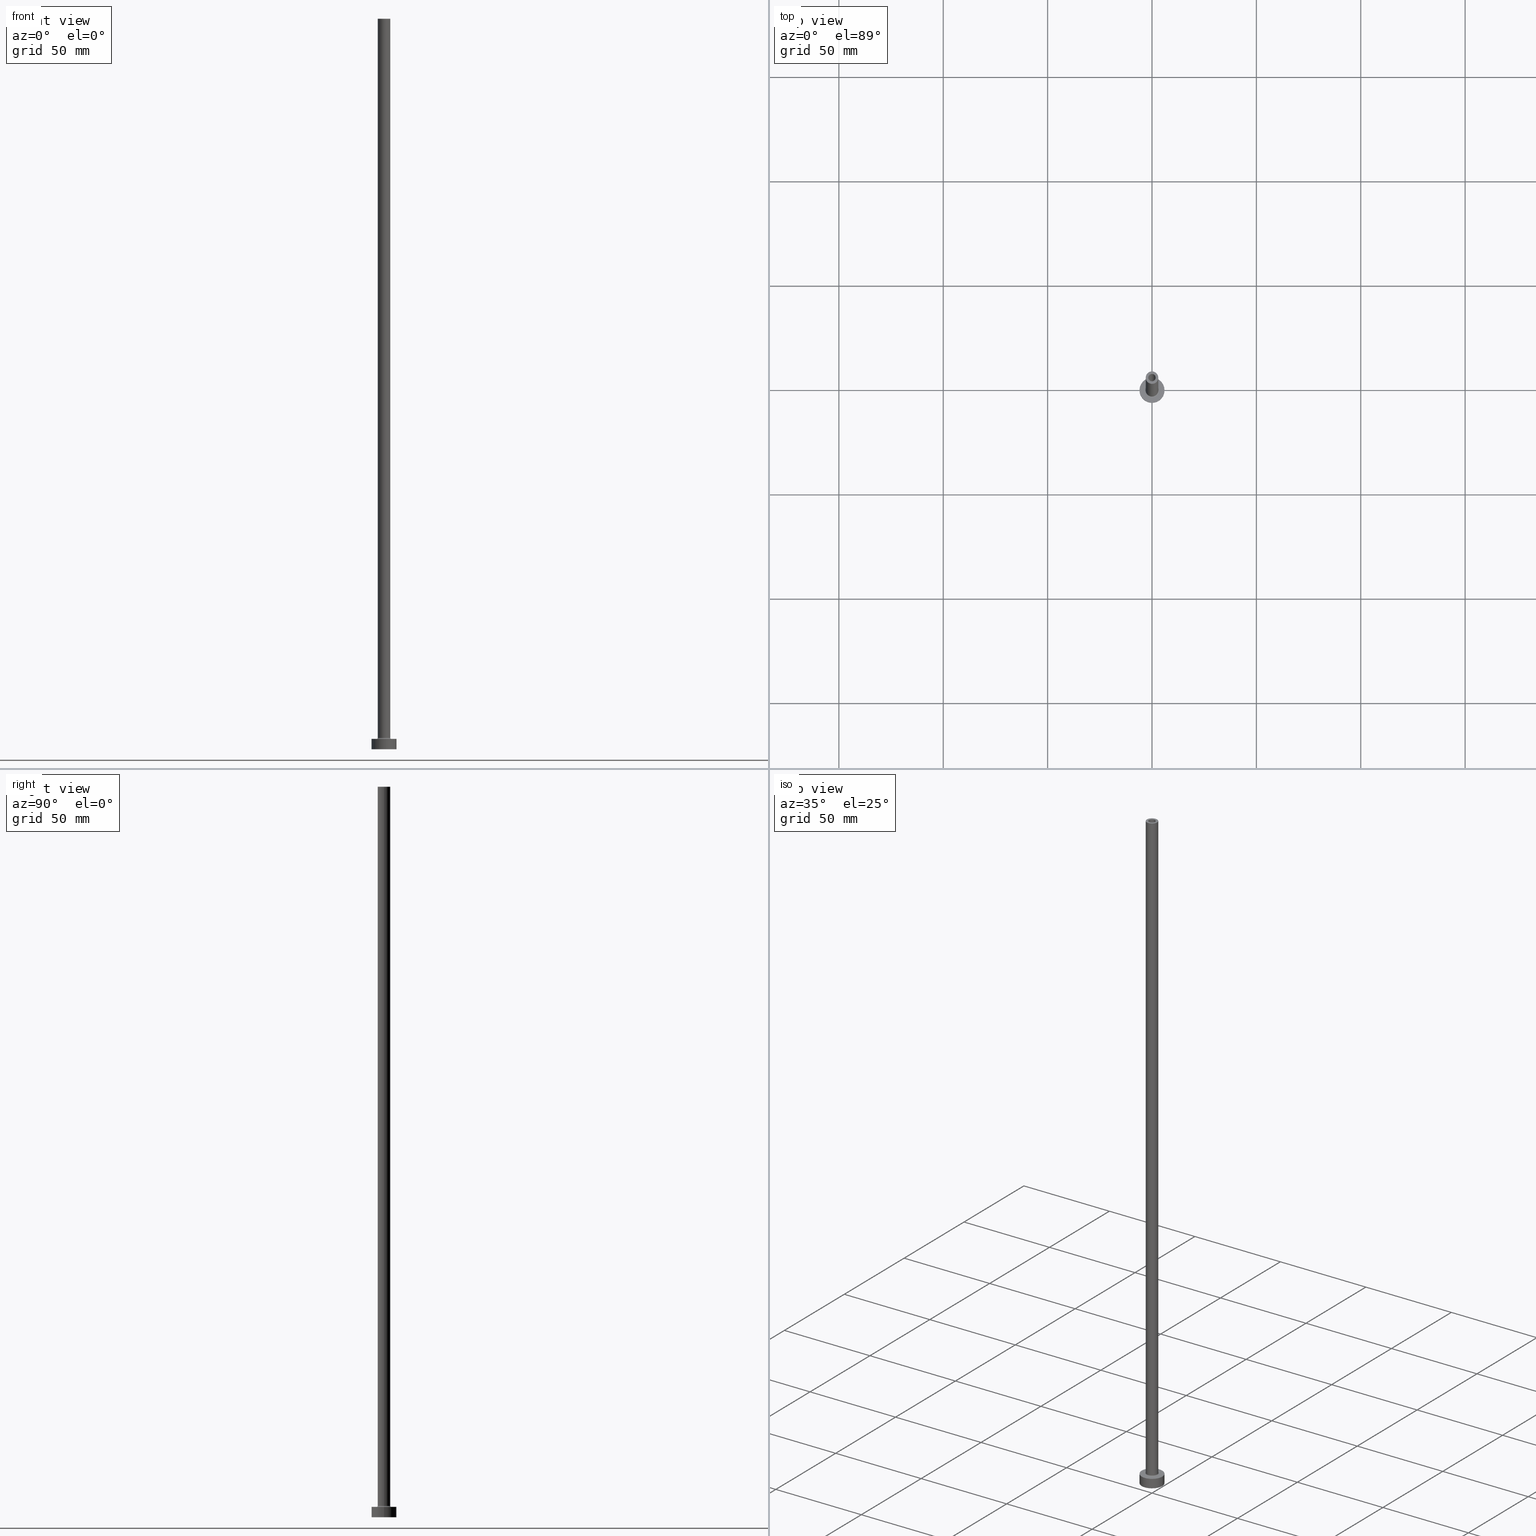
[diagram: canonical four-view strip — front | top / right | iso, engineering-drawing reading convention]
A machine part, canonical four-view strip (front | top / right | iso — engineering-drawing reading convention). The complete STEP part file that produces these views, byte-faithful:
ISO-10303-21;
HEADER;
FILE_DESCRIPTION (( 'STEP AP203' ),
    '1' );
FILE_NAME ('b839.STEP',
    '2023-02-13T17:49:47',
    ( '' ),
    ( '' ),
    'SwSTEP 2.0',
    'SolidWorks 2019',
    '' );
FILE_SCHEMA (( 'CONFIG_CONTROL_DESIGN' ));
ENDSEC;

DATA;
#1 = EDGE_LOOP ( 'NONE', ( #424, #156, #143, #321 ) ) ;
#2 = AXIS2_PLACEMENT_3D ( 'NONE', #272, #420, #384 ) ;
#3 = DIRECTION ( 'NONE',  ( 0.000000000000000000, 0.000000000000000000, 1.000000000000000000 ) ) ;
#4 = CARTESIAN_POINT ( 'NONE',  ( 0.000000000000000000, 0.000000000000000000, 350.0000000000000000 ) ) ;
#5 = CARTESIAN_POINT ( 'NONE',  ( -3.500000000000000444, 4.286263797015737088E-16, 5.000000000000002665 ) ) ;
#6 = ADVANCED_FACE ( 'NONE', ( #135 ), #268, .F. ) ;
#7 = DIRECTION ( 'NONE',  ( 0.000000000000000000, 0.000000000000000000, -1.000000000000000000 ) ) ;
#8 = CC_DESIGN_SECURITY_CLASSIFICATION ( #273, ( #347 ) ) ;
#9 = AXIS2_PLACEMENT_3D ( 'NONE', #360, #436, #252 ) ;
#10 = CIRCLE ( 'NONE', #370, 0.4999999999999995559 ) ;
#11 = ORIENTED_EDGE ( 'NONE', *, *, #39, .T. ) ;
#12 = ADVANCED_FACE ( 'NONE', ( #303 ), #422, .F. ) ;
#13 = DATE_AND_TIME ( #199, #294 ) ;
#14 = DIRECTION ( 'NONE',  ( 0.000000000000000000, 0.000000000000000000, 1.000000000000000000 ) ) ;
#15 = EDGE_CURVE ( 'NONE', #383, #105, #10, .T. ) ;
#16 = ORIENTED_EDGE ( 'NONE', *, *, #378, .F. ) ;
#17 = CARTESIAN_POINT ( 'NONE',  ( -3.500000000000000444, 4.286263797015737088E-16, 5.500000000000005329 ) ) ;
#18 = CARTESIAN_POINT ( 'NONE',  ( 0.000000000000000000, 0.000000000000000000, 5.000000000000000000 ) ) ;
#19 = VERTEX_POINT ( 'NONE', #230 ) ;
#20 = DIRECTION ( 'NONE',  ( 0.000000000000000000, 0.000000000000000000, 1.000000000000000000 ) ) ;
#21 = CIRCLE ( 'NONE', #402, 3.000000000000000444 ) ;
#22 = EDGE_CURVE ( 'NONE', #74, #62, #28, .T. ) ;
#23 = MANIFOLD_SOLID_BREP ( 'Odebrat vysunut�m4', #366 ) ;
#24 = DIRECTION ( 'NONE',  ( -0.000000000000000000, -0.000000000000000000, -1.000000000000000000 ) ) ;
#25 = ORIENTED_EDGE ( 'NONE', *, *, #39, .F. ) ;
#26 = DIRECTION ( 'NONE',  ( 0.000000000000000000, 0.000000000000000000, 1.000000000000000000 ) ) ;
#27 = EDGE_LOOP ( 'NONE', ( #401, #440, #354, #417 ) ) ;
#28 = CIRCLE ( 'NONE', #90, 1.899999999999999911 ) ;
#29 = CALENDAR_DATE ( 2023, 13, 2 ) ;
#30 = SECURITY_CLASSIFICATION_LEVEL ( 'unclassified' ) ;
#31 = DIRECTION ( 'NONE',  ( 1.000000000000000000, 0.000000000000000000, -0.000000000000000000 ) ) ;
#32 = LINE ( 'NONE', #183, #405 ) ;
#33 = PERSON_AND_ORGANIZATION ( #133, #100 ) ;
#34 = CARTESIAN_POINT ( 'NONE',  ( 0.000000000000000000, 0.000000000000000000, 350.0000000000000000 ) ) ;
#35 = DIRECTION ( 'NONE',  ( 1.000000000000000000, 0.000000000000000000, 0.000000000000000000 ) ) ;
#36 = APPROVAL_DATE_TIME ( #214, #216 ) ;
#37 = PERSON_AND_ORGANIZATION ( #133, #100 ) ;
#38 = CARTESIAN_POINT ( 'NONE',  ( 1.750000000000000000, 2.143131898507867804E-16, 305.0000000000000000 ) ) ;
#39 = EDGE_CURVE ( 'NONE', #296, #165, #413, .T. ) ;
#40 = CARTESIAN_POINT ( 'NONE',  ( 0.000000000000000000, 0.000000000000000000, 5.000000000000000000 ) ) ;
#41 = CARTESIAN_POINT ( 'NONE',  ( 0.000000000000000000, 0.000000000000000000, 0.000000000000000000 ) ) ;
#42 = DIRECTION ( 'NONE',  ( -0.000000000000000000, -0.000000000000000000, -1.000000000000000000 ) ) ;
#43 = DIRECTION ( 'NONE',  ( -1.000000000000000000, 0.000000000000000000, 0.000000000000000000 ) ) ;
#44 = DIRECTION ( 'NONE',  ( 1.000000000000000000, 0.000000000000000000, 0.000000000000000000 ) ) ;
#45 = EDGE_LOOP ( 'NONE', ( #282, #433, #99, #147 ) ) ;
#46 = PRODUCT_DEFINITION_SHAPE ( 'NONE', 'NONE',  #136 ) ;
#47 = AXIS2_PLACEMENT_3D ( 'NONE', #287, #434, #334 ) ;
#48 = EDGE_LOOP ( 'NONE', ( #277, #25, #92, #263 ) ) ;
#49 = ADVANCED_FACE ( 'NONE', ( #87 ), #187, .T. ) ;
#50 = PLANE ( 'NONE',  #381 ) ;
#51 = VERTEX_POINT ( 'NONE', #350 ) ;
#52 = DIRECTION ( 'NONE',  ( 0.000000000000000000, 0.000000000000000000, -1.000000000000000000 ) ) ;
#53 = CYLINDRICAL_SURFACE ( 'NONE', #441, 6.000000000000000888 ) ;
#54 = CC_DESIGN_PERSON_AND_ORGANIZATION_ASSIGNMENT ( #391, #430, ( #136 ) ) ;
#55 = DIRECTION ( 'NONE',  ( 0.000000000000000000, 0.000000000000000000, 1.000000000000000000 ) ) ;
#56 = ORIENTED_EDGE ( 'NONE', *, *, #439, .F. ) ;
#57 = DIRECTION ( 'NONE',  ( 1.000000000000000000, 0.000000000000000000, 0.000000000000000000 ) ) ;
#58 = EDGE_CURVE ( 'NONE', #51, #371, #382, .T. ) ;
#59 = FACE_OUTER_BOUND ( 'NONE', #48, .T. ) ;
#60 = AXIS2_PLACEMENT_3D ( 'NONE', #4, #293, #260 ) ;
#61 = PRODUCT ( 'b839', 'b839', '', ( #397 ) ) ;
#62 = VERTEX_POINT ( 'NONE', #138 ) ;
#63 = FACE_OUTER_BOUND ( 'NONE', #453, .T. ) ;
#64 = APPLICATION_CONTEXT ( 'configuration controlled 3d designs of mechanical parts and assemblies' ) ;
#65 = CARTESIAN_POINT ( 'NONE',  ( 0.000000000000000000, 0.000000000000000000, 0.000000000000000000 ) ) ;
#66 = DIRECTION ( 'NONE',  ( 0.000000000000000000, 0.000000000000000000, -1.000000000000000000 ) ) ;
#67 = EDGE_LOOP ( 'NONE', ( #373, #379 ) ) ;
#68 = CYLINDRICAL_SURFACE ( 'NONE', #247, 1.750000000000000000 ) ;
#69 = AXIS2_PLACEMENT_3D ( 'NONE', #113, #3, #119 ) ;
#70 = CARTESIAN_POINT ( 'NONE',  ( -1.899999999999999911, 0.000000000000000000, 310.3740115370177932 ) ) ;
#71 = APPLICATION_PROTOCOL_DEFINITION ( 'international standard', 'config_control_design', 1994, #308 ) ;
#72 = CARTESIAN_POINT ( 'NONE',  ( 3.500000000000000444, 0.000000000000000000, 5.500000000000005329 ) ) ;
#73 = CARTESIAN_POINT ( 'NONE',  ( 3.000000000000000444, 3.673940397442060361E-16, 5.500000000000005329 ) ) ;
#74 = VERTEX_POINT ( 'NONE', #411 ) ;
#75 = CALENDAR_DATE ( 2023, 13, 2 ) ;
#76 = DIRECTION ( 'NONE',  ( -0.000000000000000000, -0.000000000000000000, -1.000000000000000000 ) ) ;
#77 = EDGE_CURVE ( 'NONE', #311, #364, #281, .T. ) ;
#78 = EDGE_LOOP ( 'NONE', ( #442, #297, #315, #301 ) ) ;
#79 = CALENDAR_DATE ( 2023, 13, 2 ) ;
#80 = DIRECTION ( 'NONE',  ( -1.000000000000000000, 0.000000000000000000, 0.000000000000000000 ) ) ;
#81 = LINE ( 'NONE', #368, #201 ) ;
#82 = VERTEX_POINT ( 'NONE', #154 ) ;
#83 = CIRCLE ( 'NONE', #164, 3.500000000000000444 ) ;
#84 = CARTESIAN_POINT ( 'NONE',  ( 1.899999999999999911, 2.326828918379971365E-16, 305.0000000000000000 ) ) ;
#85 = CARTESIAN_POINT ( 'NONE',  ( 3.500000000000000444, 0.000000000000000000, 5.000000000000002665 ) ) ;
#86 = ORIENTED_EDGE ( 'NONE', *, *, #58, .F. ) ;
#87 = FACE_OUTER_BOUND ( 'NONE', #124, .T. ) ;
#88 = EDGE_CURVE ( 'NONE', #383, #364, #306, .T. ) ;
#89 = CIRCLE ( 'NONE', #111, 1.750000000000000000 ) ;
#90 = AXIS2_PLACEMENT_3D ( 'NONE', #299, #309, #57 ) ;
#91 = DIRECTION ( 'NONE',  ( 0.000000000000000000, 0.000000000000000000, 1.000000000000000000 ) ) ;
#92 = ORIENTED_EDGE ( 'NONE', *, *, #307, .T. ) ;
#93 = FACE_OUTER_BOUND ( 'NONE', #444, .T. ) ;
#94 = ORIENTED_EDGE ( 'NONE', *, *, #88, .T. ) ;
#95 = VECTOR ( 'NONE', #66, 1000.000000000000000 ) ;
#96 = EDGE_LOOP ( 'NONE', ( #192, #257 ) ) ;
#97 = DIRECTION ( 'NONE',  ( -0.000000000000000000, -0.000000000000000000, -1.000000000000000000 ) ) ;
#98 = APPROVAL ( #438, 'NEUR�EN�' ) ;
#99 = ORIENTED_EDGE ( 'NONE', *, *, #378, .T. ) ;
#100 = ORGANIZATION ( 'NEUR�EN�', 'NEUR�EN�', '' ) ;
#101 = AXIS2_PLACEMENT_3D ( 'NONE', #191, #97, #43 ) ;
#102 = ORIENTED_EDGE ( 'NONE', *, *, #22, .F. ) ;
#103 = LINE ( 'NONE', #70, #95 ) ;
#104 = AXIS2_PLACEMENT_3D ( 'NONE', #107, #146, #337 ) ;
#105 = VERTEX_POINT ( 'NONE', #5 ) ;
#106 = EDGE_CURVE ( 'NONE', #364, #437, #123, .T. ) ;
#107 = CARTESIAN_POINT ( 'NONE',  ( 0.000000000000000000, 0.000000000000000000, 5.500000000000005329 ) ) ;
#108 = APPROVAL_ROLE ( '' ) ;
#109 = CARTESIAN_POINT ( 'NONE',  ( 3.000000000000000444, 3.673940397442060361E-16, 350.0000000000000000 ) ) ;
#110 = FACE_OUTER_BOUND ( 'NONE', #45, .T. ) ;
#111 = AXIS2_PLACEMENT_3D ( 'NONE', #316, #274, #380 ) ;
#112 = DATE_AND_TIME ( #361, #457 ) ;
#113 = CARTESIAN_POINT ( 'NONE',  ( 0.000000000000000000, 0.000000000000000000, 5.500000000000005329 ) ) ;
#114 = DIRECTION ( 'NONE',  ( 1.000000000000000000, 0.000000000000000000, 0.000000000000000000 ) ) ;
#115 = ADVANCED_FACE ( 'NONE', ( #157, #330 ), #244, .T. ) ;
#116 = DIRECTION ( 'NONE',  ( 0.000000000000000000, 0.000000000000000000, -1.000000000000000000 ) ) ;
#117 = COORDINATED_UNIVERSAL_TIME_OFFSET ( 1, 0, .AHEAD. ) ;
#118 = CARTESIAN_POINT ( 'NONE',  ( 0.000000000000000000, 0.000000000000000000, 5.000000000000000000 ) ) ;
#119 = DIRECTION ( 'NONE',  ( 1.000000000000000000, 0.000000000000000000, 0.000000000000000000 ) ) ;
#120 = DIRECTION ( 'NONE',  ( 1.000000000000000000, 0.000000000000000000, -0.000000000000000000 ) ) ;
#121 = CC_DESIGN_APPROVAL ( #225, ( #136 ) ) ;
#122 = CIRCLE ( 'NONE', #134, 6.000000000000000888 ) ;
#123 = CIRCLE ( 'NONE', #267, 0.5000000000000004441 ) ;
#124 = EDGE_LOOP ( 'NONE', ( #278, #210, #372, #202 ) ) ;
#125 = SHAPE_DEFINITION_REPRESENTATION ( #46, #400 ) ;
#126 = CARTESIAN_POINT ( 'NONE',  ( 6.000000000000000888, 7.347880794884120722E-16, 5.000000000000000000 ) ) ;
#127 = CC_DESIGN_APPROVAL ( #98, ( #273 ) ) ;
#128 = CIRCLE ( 'NONE', #226, 1.750000000000000000 ) ;
#129 = DIRECTION ( 'NONE',  ( -0.000000000000000000, -0.000000000000000000, -1.000000000000000000 ) ) ;
#130 = DESIGN_CONTEXT ( 'detailed design', #308, 'design' ) ;
#131 = DIRECTION ( 'NONE',  ( 1.224646799147353207E-16, 1.000000000000000000, -0.000000000000000000 ) ) ;
#132 = EDGE_LOOP ( 'NONE', ( #346, #286, #271, #94 ) ) ;
#133 = PERSON ( 'NEUR�EN�', 'NEUR�EN�', 'NEUR�EN�', ('NEUR�EN�'), ('NEUR�EN�'), ('NEUR�EN�') ) ;
#134 = AXIS2_PLACEMENT_3D ( 'NONE', #166, #262, #374 ) ;
#135 = FACE_OUTER_BOUND ( 'NONE', #404, .T. ) ;
#136 = PRODUCT_DEFINITION ( 'NEZN�M�', '', #347, #130 ) ;
#137 = VERTEX_POINT ( 'NONE', #389 ) ;
#138 = CARTESIAN_POINT ( 'NONE',  ( 1.899999999999999911, 2.326828918379971365E-16, 0.000000000000000000 ) ) ;
#139 = PLANE ( 'NONE',  #369 ) ;
#140 = VERTEX_POINT ( 'NONE', #84 ) ;
#141 = DIRECTION ( 'NONE',  ( 1.000000000000000000, 0.000000000000000000, 0.000000000000000000 ) ) ;
#142 = EDGE_CURVE ( 'NONE', #105, #437, #83, .T. ) ;
#143 = ORIENTED_EDGE ( 'NONE', *, *, #415, .F. ) ;
#144 = PERSON_AND_ORGANIZATION_ROLE ( 'design_owner' ) ;
#145 = APPROVAL_ROLE ( '' ) ;
#146 = DIRECTION ( 'NONE',  ( 0.000000000000000000, 0.000000000000000000, 1.000000000000000000 ) ) ;
#147 = ORIENTED_EDGE ( 'NONE', *, *, #22, .T. ) ;
#148 = APPROVAL_ROLE ( '' ) ;
#149 = EDGE_CURVE ( 'NONE', #140, #62, #435, .T. ) ;
#150 = DIRECTION ( 'NONE',  ( 1.000000000000000000, 0.000000000000000000, 0.000000000000000000 ) ) ;
#151 = AXIS2_PLACEMENT_3D ( 'NONE', #155, #343, #302 ) ;
#152 = ORIENTED_EDGE ( 'NONE', *, *, #203, .F. ) ;
#153 = DIRECTION ( 'NONE',  ( 0.000000000000000000, 0.000000000000000000, 1.000000000000000000 ) ) ;
#154 = CARTESIAN_POINT ( 'NONE',  ( -3.000000000000000444, 0.000000000000000000, 350.0000000000000000 ) ) ;
#155 = CARTESIAN_POINT ( 'NONE',  ( 0.000000000000000000, 0.000000000000000000, 350.0000000000000000 ) ) ;
#156 = ORIENTED_EDGE ( 'NONE', *, *, #385, .T. ) ;
#157 = FACE_BOUND ( 'NONE', #217, .T. ) ;
#158 =( LENGTH_UNIT ( ) NAMED_UNIT ( * ) SI_UNIT ( .MILLI., .METRE. ) );
#159 = AXIS2_PLACEMENT_3D ( 'NONE', #386, #178, #452 ) ;
#160 = DIRECTION ( 'NONE',  ( -0.000000000000000000, -0.000000000000000000, -1.000000000000000000 ) ) ;
#161 = APPROVAL_DATE_TIME ( #13, #98 ) ;
#162 = EDGE_LOOP ( 'NONE', ( #339, #168, #56, #243 ) ) ;
#163 = ADVANCED_FACE ( 'NONE', ( #365 ), #189, .F. ) ;
#164 = AXIS2_PLACEMENT_3D ( 'NONE', #40, #356, #150 ) ;
#165 = VERTEX_POINT ( 'NONE', #181 ) ;
#166 = CARTESIAN_POINT ( 'NONE',  ( 0.000000000000000000, 0.000000000000000000, 0.000000000000000000 ) ) ;
#167 = DIRECTION ( 'NONE',  ( 1.000000000000000000, 0.000000000000000000, -0.000000000000000000 ) ) ;
#168 = ORIENTED_EDGE ( 'NONE', *, *, #15, .T. ) ;
#169 = EDGE_CURVE ( 'NONE', #449, #19, #89, .T. ) ;
#170 = CIRCLE ( 'NONE', #431, 1.899999999999999911 ) ;
#171 = FACE_BOUND ( 'NONE', #259, .T. ) ;
#172 = ORIENTED_EDGE ( 'NONE', *, *, #15, .F. ) ;
#173 = FACE_BOUND ( 'NONE', #96, .T. ) ;
#174 = EDGE_CURVE ( 'NONE', #186, #140, #264, .T. ) ;
#175 = DIRECTION ( 'NONE',  ( 0.000000000000000000, 0.000000000000000000, 1.000000000000000000 ) ) ;
#176 = CARTESIAN_POINT ( 'NONE',  ( 0.000000000000000000, 0.000000000000000000, 5.000000000000000000 ) ) ;
#177 = LOCAL_TIME ( 18, 49, 47.00000000000000000, #251 ) ;
#178 = DIRECTION ( 'NONE',  ( 0.000000000000000000, 0.000000000000000000, 1.000000000000000000 ) ) ;
#179 = AXIS2_PLACEMENT_3D ( 'NONE', #399, #129, #80 ) ;
#180 = APPROVAL_DATE_TIME ( #211, #225 ) ;
#181 = CARTESIAN_POINT ( 'NONE',  ( 6.000000000000000888, 7.347880794884120722E-16, 5.000000000000000000 ) ) ;
#182 = DIRECTION ( 'NONE',  ( 0.000000000000000000, 0.000000000000000000, -1.000000000000000000 ) ) ;
#183 = CARTESIAN_POINT ( 'NONE',  ( -3.000000000000000444, 0.000000000000000000, 350.0000000000000000 ) ) ;
#184 = APPROVAL_STATUS ( 'not_yet_approved' ) ;
#185 = FACE_OUTER_BOUND ( 'NONE', #132, .T. ) ;
#186 = VERTEX_POINT ( 'NONE', #448 ) ;
#187 = CYLINDRICAL_SURFACE ( 'NONE', #47, 6.000000000000000888 ) ;
#188 = CARTESIAN_POINT ( 'NONE',  ( -6.000000000000000888, 0.000000000000000000, 5.000000000000000000 ) ) ;
#189 = TOROIDAL_SURFACE ( 'NONE', #69, 3.500000000000000444, 0.5000000000000000000 ) ;
#190 =( NAMED_UNIT ( * ) PLANE_ANGLE_UNIT ( ) SI_UNIT ( $, .RADIAN. ) );
#191 = CARTESIAN_POINT ( 'NONE',  ( 0.000000000000000000, 0.000000000000000000, 350.0000000000000000 ) ) ;
#192 = ORIENTED_EDGE ( 'NONE', *, *, #439, .T. ) ;
#193 = LINE ( 'NONE', #188, #295 ) ;
#194 = EDGE_CURVE ( 'NONE', #137, #255, #122, .T. ) ;
#195 = APPROVAL_PERSON_ORGANIZATION ( #291, #98, #145 ) ;
#196 = VECTOR ( 'NONE', #24, 1000.000000000000000 ) ;
#197 = AXIS2_PLACEMENT_3D ( 'NONE', #205, #20, #141 ) ;
#198 = ADVANCED_FACE ( 'NONE', ( #59 ), #53, .T. ) ;
#199 = CALENDAR_DATE ( 2023, 13, 2 ) ;
#200 = CC_DESIGN_PERSON_AND_ORGANIZATION_ASSIGNMENT ( #37, #325, ( #347 ) ) ;
#201 = VECTOR ( 'NONE', #7, 1000.000000000000000 ) ;
#202 = ORIENTED_EDGE ( 'NONE', *, *, #307, .F. ) ;
#203 = EDGE_CURVE ( 'NONE', #371, #51, #128, .T. ) ;
#204 = ORIENTED_EDGE ( 'NONE', *, *, #174, .F. ) ;
#205 = CARTESIAN_POINT ( 'NONE',  ( 0.000000000000000000, 0.000000000000000000, 5.000000000000000000 ) ) ;
#206 = LOCAL_TIME ( 18, 49, 47.00000000000000000, #117 ) ;
#207 = AXIS2_PLACEMENT_3D ( 'NONE', #323, #26, #454 ) ;
#208 = PLANE ( 'NONE',  #258 ) ;
#209 = CARTESIAN_POINT ( 'NONE',  ( 0.000000000000000000, 0.000000000000000000, 350.0000000000000000 ) ) ;
#210 = ORIENTED_EDGE ( 'NONE', *, *, #212, .T. ) ;
#211 = DATE_AND_TIME ( #29, #329 ) ;
#212 = EDGE_CURVE ( 'NONE', #165, #137, #300, .T. ) ;
#213 = CARTESIAN_POINT ( 'NONE',  ( -3.000000000000000444, 0.000000000000000000, 5.500000000000005329 ) ) ;
#214 = DATE_AND_TIME ( #75, #177 ) ;
#215 = DIRECTION ( 'NONE',  ( -0.000000000000000000, -0.000000000000000000, -1.000000000000000000 ) ) ;
#216 = APPROVAL ( #184, 'NEUR�EN�' ) ;
#217 = EDGE_LOOP ( 'NONE', ( #152, #86 ) ) ;
#218 = DIRECTION ( 'NONE',  ( 0.000000000000000000, 0.000000000000000000, -1.000000000000000000 ) ) ;
#219 = CARTESIAN_POINT ( 'NONE',  ( -6.000000000000000888, 0.000000000000000000, 0.000000000000000000 ) ) ;
#220 = CIRCLE ( 'NONE', #60, 3.000000000000000444 ) ;
#221 = ORIENTED_EDGE ( 'NONE', *, *, #290, .F. ) ;
#222 = ADVANCED_FACE ( 'NONE', ( #171, #375 ), #139, .F. ) ;
#223 = CYLINDRICAL_SURFACE ( 'NONE', #151, 1.750000000000000000 ) ;
#224 = ORIENTED_EDGE ( 'NONE', *, *, #290, .T. ) ;
#225 = APPROVAL ( #279, 'NEUR�EN�' ) ;
#226 = AXIS2_PLACEMENT_3D ( 'NONE', #414, #153, #318 ) ;
#227 = CC_DESIGN_DATE_AND_TIME_ASSIGNMENT ( #336, #458, ( #273 ) ) ;
#228 = ORIENTED_EDGE ( 'NONE', *, *, #194, .F. ) ;
#229 = UNCERTAINTY_MEASURE_WITH_UNIT (LENGTH_MEASURE( 1.000000000000000082E-05 ), #158, 'distance_accuracy_value', 'NONE');
#230 = CARTESIAN_POINT ( 'NONE',  ( -1.750000000000000000, 0.000000000000000000, 305.0000000000000000 ) ) ;
#231 = DIRECTION ( 'NONE',  ( 1.000000000000000000, 0.000000000000000000, 0.000000000000000000 ) ) ;
#232 = CC_DESIGN_APPROVAL ( #216, ( #347 ) ) ;
#233 = AXIS2_PLACEMENT_3D ( 'NONE', #237, #408, #231 ) ;
#234 = CARTESIAN_POINT ( 'NONE',  ( 0.000000000000000000, 0.000000000000000000, 305.0000000000000000 ) ) ;
#235 = ADVANCED_FACE ( 'NONE', ( #455, #93 ), #50, .F. ) ;
#236 = EDGE_LOOP ( 'NONE', ( #418, #228 ) ) ;
#237 = CARTESIAN_POINT ( 'NONE',  ( 0.000000000000000000, 0.000000000000000000, 5.500000000000005329 ) ) ;
#238 = CC_DESIGN_PERSON_AND_ORGANIZATION_ASSIGNMENT ( #398, #322, ( #273 ) ) ;
#239 = CARTESIAN_POINT ( 'NONE',  ( 0.000000000000000000, 0.000000000000000000, 305.0000000000000000 ) ) ;
#240 = ORIENTED_EDGE ( 'NONE', *, *, #328, .F. ) ;
#241 = ADVANCED_FACE ( 'NONE', ( #390 ), #68, .F. ) ;
#242 = CIRCLE ( 'NONE', #345, 3.500000000000000444 ) ;
#243 = ORIENTED_EDGE ( 'NONE', *, *, #106, .F. ) ;
#244 = PLANE ( 'NONE',  #340 ) ;
#245 = ORIENTED_EDGE ( 'NONE', *, *, #106, .T. ) ;
#246 = COORDINATED_UNIVERSAL_TIME_OFFSET ( 1, 0, .AHEAD. ) ;
#247 = AXIS2_PLACEMENT_3D ( 'NONE', #209, #182, #459 ) ;
#248 = EDGE_CURVE ( 'NONE', #82, #311, #21, .T. ) ;
#249 = DIRECTION ( 'NONE',  ( 0.000000000000000000, 0.000000000000000000, 1.000000000000000000 ) ) ;
#250 = LINE ( 'NONE', #285, #283 ) ;
#251 = COORDINATED_UNIVERSAL_TIME_OFFSET ( 1, 0, .AHEAD. ) ;
#252 = DIRECTION ( 'NONE',  ( -1.000000000000000000, 0.000000000000000000, 0.000000000000000000 ) ) ;
#253 = ADVANCED_FACE ( 'NONE', ( #110 ), #394, .F. ) ;
#254 = CARTESIAN_POINT ( 'NONE',  ( -6.000000000000000888, 0.000000000000000000, 5.000000000000000000 ) ) ;
#255 = VERTEX_POINT ( 'NONE', #219 ) ;
#256 = PERSON_AND_ORGANIZATION_ROLE ( 'creator' ) ;
#257 = ORIENTED_EDGE ( 'NONE', *, *, #142, .T. ) ;
#258 = AXIS2_PLACEMENT_3D ( 'NONE', #176, #14, #120 ) ;
#259 = EDGE_LOOP ( 'NONE', ( #102, #221 ) ) ;
#260 = DIRECTION ( 'NONE',  ( 1.000000000000000000, 0.000000000000000000, 0.000000000000000000 ) ) ;
#261 = ORIENTED_EDGE ( 'NONE', *, *, #341, .T. ) ;
#262 = DIRECTION ( 'NONE',  ( 0.000000000000000000, 0.000000000000000000, 1.000000000000000000 ) ) ;
#263 = ORIENTED_EDGE ( 'NONE', *, *, #280, .T. ) ;
#264 = CIRCLE ( 'NONE', #331, 1.899999999999999911 ) ;
#265 = CC_DESIGN_PERSON_AND_ORGANIZATION_ASSIGNMENT ( #425, #256, ( #347 ) ) ;
#266 = DIRECTION ( 'NONE',  ( -1.000000000000000000, 0.000000000000000000, 0.000000000000000000 ) ) ;
#267 = AXIS2_PLACEMENT_3D ( 'NONE', #72, #359, #393 ) ;
#268 = CYLINDRICAL_SURFACE ( 'NONE', #403, 1.899999999999999911 ) ;
#269 = ORIENTED_EDGE ( 'NONE', *, *, #142, .F. ) ;
#270 = PRODUCT_RELATED_PRODUCT_CATEGORY ( 'detail', '', ( #61 ) ) ;
#271 = ORIENTED_EDGE ( 'NONE', *, *, #395, .T. ) ;
#272 = CARTESIAN_POINT ( 'NONE',  ( 0.000000000000000000, 0.000000000000000000, 305.0000000000000000 ) ) ;
#273 = SECURITY_CLASSIFICATION ( '', '', #30 ) ;
#274 = DIRECTION ( 'NONE',  ( 0.000000000000000000, 0.000000000000000000, 1.000000000000000000 ) ) ;
#275 = AXIS2_PLACEMENT_3D ( 'NONE', #447, #249, #114 ) ;
#276 = DIRECTION ( 'NONE',  ( 1.000000000000000000, 0.000000000000000000, -0.000000000000000000 ) ) ;
#277 = ORIENTED_EDGE ( 'NONE', *, *, #212, .F. ) ;
#278 = ORIENTED_EDGE ( 'NONE', *, *, #341, .F. ) ;
#279 = APPROVAL_STATUS ( 'not_yet_approved' ) ;
#280 = EDGE_CURVE ( 'NONE', #255, #137, #305, .T. ) ;
#281 = LINE ( 'NONE', #109, #319 ) ;
#282 = ORIENTED_EDGE ( 'NONE', *, *, #149, .F. ) ;
#283 = VECTOR ( 'NONE', #116, 1000.000000000000000 ) ;
#284 = FACE_OUTER_BOUND ( 'NONE', #1, .T. ) ;
#285 = CARTESIAN_POINT ( 'NONE',  ( 1.750000000000000000, 2.143131898507867804E-16, 350.0000000000000000 ) ) ;
#286 = ORIENTED_EDGE ( 'NONE', *, *, #248, .F. ) ;
#287 = CARTESIAN_POINT ( 'NONE',  ( 0.000000000000000000, 0.000000000000000000, 5.000000000000000000 ) ) ;
#288 = CYLINDRICAL_SURFACE ( 'NONE', #179, 3.000000000000000444 ) ;
#289 = DIRECTION ( 'NONE',  ( 1.000000000000000000, 0.000000000000000000, 0.000000000000000000 ) ) ;
#290 = EDGE_CURVE ( 'NONE', #62, #74, #446, .T. ) ;
#291 = PERSON_AND_ORGANIZATION ( #133, #100 ) ;
#292 = DIRECTION ( 'NONE',  ( 0.000000000000000000, 0.000000000000000000, 1.000000000000000000 ) ) ;
#293 = DIRECTION ( 'NONE',  ( 0.000000000000000000, 0.000000000000000000, 1.000000000000000000 ) ) ;
#294 = LOCAL_TIME ( 18, 49, 47.00000000000000000, #358 ) ;
#295 = VECTOR ( 'NONE', #215, 1000.000000000000000 ) ;
#296 = VERTEX_POINT ( 'NONE', #254 ) ;
#297 = ORIENTED_EDGE ( 'NONE', *, *, #77, .T. ) ;
#298 = CC_DESIGN_PERSON_AND_ORGANIZATION_ASSIGNMENT ( #324, #144, ( #61 ) ) ;
#299 = CARTESIAN_POINT ( 'NONE',  ( 0.000000000000000000, 0.000000000000000000, 0.000000000000000000 ) ) ;
#300 = LINE ( 'NONE', #126, #196 ) ;
#301 = ORIENTED_EDGE ( 'NONE', *, *, #395, .F. ) ;
#302 = DIRECTION ( 'NONE',  ( -1.000000000000000000, 0.000000000000000000, 0.000000000000000000 ) ) ;
#303 = FACE_OUTER_BOUND ( 'NONE', #162, .T. ) ;
#304 = APPROVAL_PERSON_ORGANIZATION ( #33, #216, #148 ) ;
#305 = CIRCLE ( 'NONE', #421, 6.000000000000000888 ) ;
#306 = CIRCLE ( 'NONE', #104, 3.000000000000000444 ) ;
#307 = EDGE_CURVE ( 'NONE', #296, #255, #193, .T. ) ;
#308 = APPLICATION_CONTEXT ( 'configuration controlled 3d designs of mechanical parts and assemblies' ) ;
#309 = DIRECTION ( 'NONE',  ( -0.000000000000000000, -0.000000000000000000, -1.000000000000000000 ) ) ;
#310 = DIRECTION ( 'NONE',  ( -0.000000000000000000, -0.000000000000000000, -1.000000000000000000 ) ) ;
#311 = VERTEX_POINT ( 'NONE', #432 ) ;
#312 = VECTOR ( 'NONE', #218, 1000.000000000000000 ) ;
#313 = EDGE_CURVE ( 'NONE', #311, #82, #220, .T. ) ;
#314 = DIRECTION ( 'NONE',  ( 1.000000000000000000, 0.000000000000000000, 0.000000000000000000 ) ) ;
#315 = ORIENTED_EDGE ( 'NONE', *, *, #406, .T. ) ;
#316 = CARTESIAN_POINT ( 'NONE',  ( 0.000000000000000000, 0.000000000000000000, 305.0000000000000000 ) ) ;
#317 = AXIS2_PLACEMENT_3D ( 'NONE', #342, #91, #409 ) ;
#318 = DIRECTION ( 'NONE',  ( 1.000000000000000000, 0.000000000000000000, 0.000000000000000000 ) ) ;
#319 = VECTOR ( 'NONE', #42, 1000.000000000000000 ) ;
#320 = ADVANCED_FACE ( 'NONE', ( #284 ), #223, .F. ) ;
#321 = ORIENTED_EDGE ( 'NONE', *, *, #461, .F. ) ;
#322 = PERSON_AND_ORGANIZATION_ROLE ( 'classification_officer' ) ;
#323 = CARTESIAN_POINT ( 'NONE',  ( 0.000000000000000000, 0.000000000000000000, 5.500000000000005329 ) ) ;
#324 = PERSON_AND_ORGANIZATION ( #133, #100 ) ;
#325 = PERSON_AND_ORGANIZATION_ROLE ( 'design_supplier' ) ;
#326 = FACE_OUTER_BOUND ( 'NONE', #78, .T. ) ;
#327 = ORIENTED_EDGE ( 'NONE', *, *, #415, .T. ) ;
#328 = EDGE_CURVE ( 'NONE', #140, #186, #170, .T. ) ;
#329 = LOCAL_TIME ( 18, 49, 47.00000000000000000, #246 ) ;
#330 = FACE_OUTER_BOUND ( 'NONE', #67, .T. ) ;
#331 = AXIS2_PLACEMENT_3D ( 'NONE', #234, #410, #314 ) ;
#332 = DIRECTION ( 'NONE',  ( 1.000000000000000000, 0.000000000000000000, 0.000000000000000000 ) ) ;
#333 = DIRECTION ( 'NONE',  ( 0.000000000000000000, 0.000000000000000000, 1.000000000000000000 ) ) ;
#334 = DIRECTION ( 'NONE',  ( -1.000000000000000000, 0.000000000000000000, 0.000000000000000000 ) ) ;
#335 = ORIENTED_EDGE ( 'NONE', *, *, #169, .T. ) ;
#336 = DATE_AND_TIME ( #79, #206 ) ;
#337 = DIRECTION ( 'NONE',  ( 1.000000000000000000, 0.000000000000000000, 0.000000000000000000 ) ) ;
#338 = DIRECTION ( 'NONE',  ( 0.000000000000000000, 0.000000000000000000, 1.000000000000000000 ) ) ;
#339 = ORIENTED_EDGE ( 'NONE', *, *, #88, .F. ) ;
#340 = AXIS2_PLACEMENT_3D ( 'NONE', #34, #292, #31 ) ;
#341 = EDGE_CURVE ( 'NONE', #165, #296, #392, .T. ) ;
#342 = CARTESIAN_POINT ( 'NONE',  ( 0.000000000000000000, 0.000000000000000000, 0.000000000000000000 ) ) ;
#343 = DIRECTION ( 'NONE',  ( 0.000000000000000000, 0.000000000000000000, -1.000000000000000000 ) ) ;
#344 = ADVANCED_FACE ( 'NONE', ( #185 ), #288, .T. ) ;
#345 = AXIS2_PLACEMENT_3D ( 'NONE', #118, #160, #44 ) ;
#346 = ORIENTED_EDGE ( 'NONE', *, *, #77, .F. ) ;
#347 = PRODUCT_DEFINITION_FORMATION_WITH_SPECIFIED_SOURCE ( 'LIBOVOLN�', '', #61, .NOT_KNOWN. ) ;
#348 = AXIS2_PLACEMENT_3D ( 'NONE', #65, #76, #332 ) ;
#349 = ADVANCED_FACE ( 'NONE', ( #326 ), #363, .T. ) ;
#350 = CARTESIAN_POINT ( 'NONE',  ( 1.750000000000000000, 2.143131898507867804E-16, 350.0000000000000000 ) ) ;
#351 = CARTESIAN_POINT ( 'NONE',  ( 0.000000000000000000, 0.000000000000000000, 0.000000000000000000 ) ) ;
#352 = DIRECTION ( 'NONE',  ( -0.000000000000000000, -0.000000000000000000, -1.000000000000000000 ) ) ;
#353 = APPROVAL_PERSON_ORGANIZATION ( #427, #225, #108 ) ;
#354 = ORIENTED_EDGE ( 'NONE', *, *, #461, .T. ) ;
#355 = CIRCLE ( 'NONE', #207, 3.000000000000000444 ) ;
#356 = DIRECTION ( 'NONE',  ( -0.000000000000000000, -0.000000000000000000, -1.000000000000000000 ) ) ;
#357 = DATE_TIME_ROLE ( 'creation_date' ) ;
#358 = COORDINATED_UNIVERSAL_TIME_OFFSET ( 1, 0, .AHEAD. ) ;
#359 = DIRECTION ( 'NONE',  ( 0.000000000000000000, -1.000000000000000000, 0.000000000000000000 ) ) ;
#360 = CARTESIAN_POINT ( 'NONE',  ( 0.000000000000000000, 0.000000000000000000, 310.3740115370177932 ) ) ;
#361 = CALENDAR_DATE ( 2023, 13, 2 ) ;
#362 = CARTESIAN_POINT ( 'NONE',  ( 1.899999999999999911, 2.326828918379971365E-16, 310.3740115370177932 ) ) ;
#363 = CYLINDRICAL_SURFACE ( 'NONE', #101, 3.000000000000000444 ) ;
#364 = VERTEX_POINT ( 'NONE', #73 ) ;
#365 = FACE_OUTER_BOUND ( 'NONE', #426, .T. ) ;
#366 = CLOSED_SHELL ( 'NONE', ( #320, #6, #12, #349, #49, #198, #419, #222, #344, #115, #163, #253, #235, #241 ) ) ;
#367 = CARTESIAN_POINT ( 'NONE',  ( 0.000000000000000000, 0.000000000000000000, 305.0000000000000000 ) ) ;
#368 = CARTESIAN_POINT ( 'NONE',  ( -1.750000000000000000, 0.000000000000000000, 350.0000000000000000 ) ) ;
#369 = AXIS2_PLACEMENT_3D ( 'NONE', #351, #175, #276 ) ;
#370 = AXIS2_PLACEMENT_3D ( 'NONE', #17, #131, #377 ) ;
#371 = VERTEX_POINT ( 'NONE', #388 ) ;
#372 = ORIENTED_EDGE ( 'NONE', *, *, #194, .T. ) ;
#373 = ORIENTED_EDGE ( 'NONE', *, *, #248, .T. ) ;
#374 = DIRECTION ( 'NONE',  ( 1.000000000000000000, 0.000000000000000000, 0.000000000000000000 ) ) ;
#375 = FACE_OUTER_BOUND ( 'NONE', #236, .T. ) ;
#376 = ORIENTED_EDGE ( 'NONE', *, *, #174, .T. ) ;
#377 = DIRECTION ( 'NONE',  ( -1.000000000000000000, 1.224646799147354440E-16, 0.000000000000000000 ) ) ;
#378 = EDGE_CURVE ( 'NONE', #186, #74, #103, .T. ) ;
#379 = ORIENTED_EDGE ( 'NONE', *, *, #313, .T. ) ;
#380 = DIRECTION ( 'NONE',  ( 1.000000000000000000, 0.000000000000000000, 0.000000000000000000 ) ) ;
#381 = AXIS2_PLACEMENT_3D ( 'NONE', #239, #55, #167 ) ;
#382 = CIRCLE ( 'NONE', #159, 1.750000000000000000 ) ;
#383 = VERTEX_POINT ( 'NONE', #213 ) ;
#384 = DIRECTION ( 'NONE',  ( 1.000000000000000000, 0.000000000000000000, 0.000000000000000000 ) ) ;
#385 = EDGE_CURVE ( 'NONE', #51, #449, #250, .T. ) ;
#386 = CARTESIAN_POINT ( 'NONE',  ( 0.000000000000000000, 0.000000000000000000, 350.0000000000000000 ) ) ;
#387 = DIRECTION ( 'NONE',  ( 1.000000000000000000, 0.000000000000000000, 0.000000000000000000 ) ) ;
#388 = CARTESIAN_POINT ( 'NONE',  ( -1.750000000000000000, 0.000000000000000000, 350.0000000000000000 ) ) ;
#389 = CARTESIAN_POINT ( 'NONE',  ( 6.000000000000000888, 7.347880794884120722E-16, 0.000000000000000000 ) ) ;
#390 = FACE_OUTER_BOUND ( 'NONE', #27, .T. ) ;
#391 = PERSON_AND_ORGANIZATION ( #133, #100 ) ;
#392 = CIRCLE ( 'NONE', #275, 6.000000000000000888 ) ;
#393 = DIRECTION ( 'NONE',  ( 0.000000000000000000, 0.000000000000000000, -1.000000000000000000 ) ) ;
#394 = CYLINDRICAL_SURFACE ( 'NONE', #9, 1.899999999999999911 ) ;
#395 = EDGE_CURVE ( 'NONE', #82, #383, #32, .T. ) ;
#396 = ORIENTED_EDGE ( 'NONE', *, *, #149, .T. ) ;
#397 = MECHANICAL_CONTEXT ( 'NONE', #64, 'mechanical' ) ;
#398 = PERSON_AND_ORGANIZATION ( #133, #100 ) ;
#399 = CARTESIAN_POINT ( 'NONE',  ( 0.000000000000000000, 0.000000000000000000, 350.0000000000000000 ) ) ;
#400 = ADVANCED_BREP_SHAPE_REPRESENTATION ( 'b839', ( #23, #317 ), #456 ) ;
#401 = ORIENTED_EDGE ( 'NONE', *, *, #385, .F. ) ;
#402 = AXIS2_PLACEMENT_3D ( 'NONE', #429, #333, #289 ) ;
#403 = AXIS2_PLACEMENT_3D ( 'NONE', #416, #52, #266 ) ;
#404 = EDGE_LOOP ( 'NONE', ( #376, #396, #224, #16 ) ) ;
#405 = VECTOR ( 'NONE', #352, 1000.000000000000000 ) ;
#406 = EDGE_CURVE ( 'NONE', #364, #383, #355, .T. ) ;
#407 =( NAMED_UNIT ( * ) SI_UNIT ( $, .STERADIAN. ) SOLID_ANGLE_UNIT ( ) );
#408 = DIRECTION ( 'NONE',  ( 0.000000000000000000, 0.000000000000000000, 1.000000000000000000 ) ) ;
#409 = DIRECTION ( 'NONE',  ( 1.000000000000000000, 0.000000000000000000, 0.000000000000000000 ) ) ;
#410 = DIRECTION ( 'NONE',  ( 0.000000000000000000, 0.000000000000000000, 1.000000000000000000 ) ) ;
#411 = CARTESIAN_POINT ( 'NONE',  ( -1.899999999999999911, 0.000000000000000000, 0.000000000000000000 ) ) ;
#412 = CIRCLE ( 'NONE', #2, 1.750000000000000000 ) ;
#413 = CIRCLE ( 'NONE', #197, 6.000000000000000888 ) ;
#414 = CARTESIAN_POINT ( 'NONE',  ( 0.000000000000000000, 0.000000000000000000, 350.0000000000000000 ) ) ;
#415 = EDGE_CURVE ( 'NONE', #19, #449, #412, .T. ) ;
#416 = CARTESIAN_POINT ( 'NONE',  ( 0.000000000000000000, 0.000000000000000000, 310.3740115370177932 ) ) ;
#417 = ORIENTED_EDGE ( 'NONE', *, *, #169, .F. ) ;
#418 = ORIENTED_EDGE ( 'NONE', *, *, #280, .F. ) ;
#419 = ADVANCED_FACE ( 'NONE', ( #173, #63 ), #208, .T. ) ;
#420 = DIRECTION ( 'NONE',  ( 0.000000000000000000, 0.000000000000000000, 1.000000000000000000 ) ) ;
#421 = AXIS2_PLACEMENT_3D ( 'NONE', #41, #423, #387 ) ;
#422 = TOROIDAL_SURFACE ( 'NONE', #233, 3.500000000000000444, 0.5000000000000000000 ) ;
#423 = DIRECTION ( 'NONE',  ( 0.000000000000000000, 0.000000000000000000, 1.000000000000000000 ) ) ;
#424 = ORIENTED_EDGE ( 'NONE', *, *, #203, .T. ) ;
#425 = PERSON_AND_ORGANIZATION ( #133, #100 ) ;
#426 = EDGE_LOOP ( 'NONE', ( #172, #445, #245, #269 ) ) ;
#427 = PERSON_AND_ORGANIZATION ( #133, #100 ) ;
#428 = APPLICATION_PROTOCOL_DEFINITION ( 'international standard', 'config_control_design', 1994, #64 ) ;
#429 = CARTESIAN_POINT ( 'NONE',  ( 0.000000000000000000, 0.000000000000000000, 350.0000000000000000 ) ) ;
#430 = PERSON_AND_ORGANIZATION_ROLE ( 'creator' ) ;
#431 = AXIS2_PLACEMENT_3D ( 'NONE', #367, #338, #35 ) ;
#432 = CARTESIAN_POINT ( 'NONE',  ( 3.000000000000000444, 3.673940397442060361E-16, 350.0000000000000000 ) ) ;
#433 = ORIENTED_EDGE ( 'NONE', *, *, #328, .T. ) ;
#434 = DIRECTION ( 'NONE',  ( -0.000000000000000000, -0.000000000000000000, -1.000000000000000000 ) ) ;
#435 = LINE ( 'NONE', #362, #312 ) ;
#436 = DIRECTION ( 'NONE',  ( 0.000000000000000000, 0.000000000000000000, -1.000000000000000000 ) ) ;
#437 = VERTEX_POINT ( 'NONE', #85 ) ;
#438 = APPROVAL_STATUS ( 'not_yet_approved' ) ;
#439 = EDGE_CURVE ( 'NONE', #437, #105, #242, .T. ) ;
#440 = ORIENTED_EDGE ( 'NONE', *, *, #58, .T. ) ;
#441 = AXIS2_PLACEMENT_3D ( 'NONE', #18, #310, #450 ) ;
#442 = ORIENTED_EDGE ( 'NONE', *, *, #313, .F. ) ;
#443 = CC_DESIGN_DATE_AND_TIME_ASSIGNMENT ( #112, #357, ( #136 ) ) ;
#444 = EDGE_LOOP ( 'NONE', ( #204, #240 ) ) ;
#445 = ORIENTED_EDGE ( 'NONE', *, *, #406, .F. ) ;
#446 = CIRCLE ( 'NONE', #348, 1.899999999999999911 ) ;
#447 = CARTESIAN_POINT ( 'NONE',  ( 0.000000000000000000, 0.000000000000000000, 5.000000000000000000 ) ) ;
#448 = CARTESIAN_POINT ( 'NONE',  ( -1.899999999999999911, 0.000000000000000000, 305.0000000000000000 ) ) ;
#449 = VERTEX_POINT ( 'NONE', #38 ) ;
#450 = DIRECTION ( 'NONE',  ( -1.000000000000000000, 0.000000000000000000, 0.000000000000000000 ) ) ;
#451 = EDGE_LOOP ( 'NONE', ( #327, #335 ) ) ;
#452 = DIRECTION ( 'NONE',  ( 1.000000000000000000, 0.000000000000000000, 0.000000000000000000 ) ) ;
#453 = EDGE_LOOP ( 'NONE', ( #11, #261 ) ) ;
#454 = DIRECTION ( 'NONE',  ( 1.000000000000000000, 0.000000000000000000, 0.000000000000000000 ) ) ;
#455 = FACE_BOUND ( 'NONE', #451, .T. ) ;
#456 =( GEOMETRIC_REPRESENTATION_CONTEXT ( 3 ) GLOBAL_UNCERTAINTY_ASSIGNED_CONTEXT ( ( #229 ) ) GLOBAL_UNIT_ASSIGNED_CONTEXT ( ( #158, #190, #407 ) ) REPRESENTATION_CONTEXT ( 'NONE', 'WORKASPACE' ) );
#457 = LOCAL_TIME ( 18, 49, 47.00000000000000000, #460 ) ;
#458 = DATE_TIME_ROLE ( 'classification_date' ) ;
#459 = DIRECTION ( 'NONE',  ( -1.000000000000000000, 0.000000000000000000, 0.000000000000000000 ) ) ;
#460 = COORDINATED_UNIVERSAL_TIME_OFFSET ( 1, 0, .AHEAD. ) ;
#461 = EDGE_CURVE ( 'NONE', #371, #19, #81, .T. ) ;
ENDSEC;
END-ISO-10303-21;
